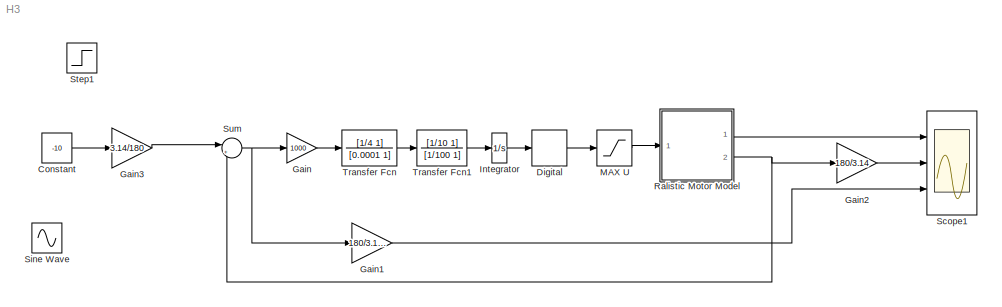
MODEL H3
KIND model
BLOCK [Constant] Constant
  OutDataType = fixdt(1, 16)
  OutScaling = 2^0
  Value = -10
BLOCK [ZeroOrderHold] Digital
  SampleTime = 1/19531.25
BLOCK [Gain] Gain
  Gain = 1000
  OutDataType = fixdt(1, 16)
  OutDataTypeMode = Inherit via internal rule
  OutDataTypeStr = Inherit: Inherit via internal rule
  OutScaling = 2^0
  ParamDataTypeStr = Inherit: Inherit via internal rule
  ParameterDataType = fixdt(1, 16)
  ParameterDataTypeMode = Inherit via internal rule
  ParameterScaling = 2^0
  SaturateOnIntegerOverflow = off
BLOCK [Gain] Gain1
  Gain = 180/3.14*60*60
  OutDataType = fixdt(1, 16)
  OutDataTypeMode = Inherit via internal rule
  OutDataTypeStr = Inherit: Inherit via internal rule
  OutScaling = 2^0
  ParamDataTypeStr = Inherit: Inherit via internal rule
  ParameterDataType = fixdt(1, 16)
  ParameterDataTypeMode = Inherit via internal rule
  ParameterScaling = 2^0
  SaturateOnIntegerOverflow = off
BLOCK [Gain] Gain2
  Gain = 180/3.14
  OutDataType = fixdt(1, 16)
  OutDataTypeMode = Inherit via internal rule
  OutDataTypeStr = Inherit: Inherit via internal rule
  OutScaling = 2^0
  ParamDataTypeStr = Inherit: Inherit via internal rule
  ParameterDataType = fixdt(1, 16)
  ParameterDataTypeMode = Inherit via internal rule
  ParameterScaling = 2^0
  SaturateOnIntegerOverflow = off
BLOCK [Gain] Gain3
  Gain = 3.14/180
  OutDataType = fixdt(1, 16)
  OutDataTypeMode = Inherit via internal rule
  OutDataTypeStr = Inherit: Inherit via internal rule
  OutScaling = 2^0
  ParamDataTypeStr = Inherit: Inherit via internal rule
  ParameterDataType = fixdt(1, 16)
  ParameterDataTypeMode = Inherit via internal rule
  ParameterScaling = 2^0
  SaturateOnIntegerOverflow = off
BLOCK [Integrator] Integrator
  Ports = [1, 1]
BLOCK [Saturate] MAX U
  LowerLimit = -27
  UpperLimit = 27
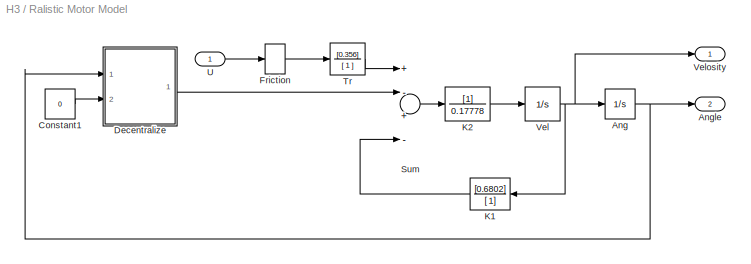
BLOCK [SubSystem] Ralistic Motor Model
  FunctionWithSeparateData = off
  MaskHideContents = off
  MinAlgLoopOccurrences = off
  Opaque = off
  Ports = [1, 2]
  PropExecContextOutsideSubsystem = off
  RTWSystemCode = Auto
  RequestExecContextInheritance = off
  TreatAsAtomicUnit = on
BLOCK [Integrator] Ralistic Motor Model/Ang
  Ports = [1, 1]
BLOCK [Outport] Ralistic Motor Model/Angle
  IconDisplay = Port number
  OutDataType = fixdt(1, 16)
  OutScaling = 2^0
  Port = 2
BLOCK [Constant] Ralistic Motor Model/Constant1
  OutDataType = fixdt(1, 16)
  OutScaling = 2^0
  Value = 0
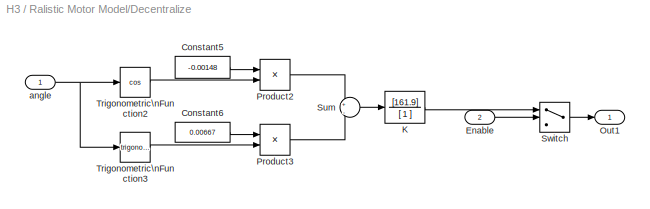
BLOCK [SubSystem] Ralistic Motor Model/Decentralize
  FunctionWithSeparateData = off
  MaskHideContents = off
  MinAlgLoopOccurrences = off
  Opaque = off
  Ports = [2, 1]
  PropExecContextOutsideSubsystem = off
  RTWSystemCode = Auto
  RequestExecContextInheritance = off
  TreatAsAtomicUnit = on
BLOCK [Constant] Ralistic Motor Model/Decentralize/Constant5
  Value = -0.00148
BLOCK [Constant] Ralistic Motor Model/Decentralize/Constant6
  Value = 0.00667
BLOCK [Inport] Ralistic Motor Model/Decentralize/Enable
  IconDisplay = Port number
  OutDataType = fixdt(1, 16)
  OutScaling = 2^0
  Port = 2
BLOCK [TransferFcn] Ralistic Motor Model/Decentralize/K
  Denominator = [ 1 ]
  Numerator = [161.9]
BLOCK [Outport] Ralistic Motor Model/Decentralize/Out1
  IconDisplay = Port number
  OutDataType = fixdt(1, 16)
  OutScaling = 2^0
BLOCK [Product] Ralistic Motor Model/Decentralize/Product2
  InputSameDT = off
  OutDataTypeMode = Inherit via internal rule
  OutDataTypeStr = Inherit: Inherit via internal rule
  Ports = [2, 1]
  SaturateOnIntegerOverflow = off
BLOCK [Product] Ralistic Motor Model/Decentralize/Product3
  InputSameDT = off
  OutDataTypeMode = Inherit via internal rule
  OutDataTypeStr = Inherit: Inherit via internal rule
  Ports = [2, 1]
  SaturateOnIntegerOverflow = off
BLOCK [Sum] Ralistic Motor Model/Decentralize/Sum
  IconShape = round
  InputSameDT = off
  Inputs = +|-
  OutDataType = fixdt(1, 16)
  OutDataTypeMode = Inherit via internal rule
  OutDataTypeStr = Inherit: Inherit via internal rule
  OutScaling = 2^0
  Ports = [2, 1]
  SaturateOnIntegerOverflow = off
BLOCK [Switch] Ralistic Motor Model/Decentralize/Switch
  Criteria = u2 > Threshold
  InputSameDT = off
  OutDataType = fixdt(1, 16)
  OutScaling = 2^0
  SaturateOnIntegerOverflow = off
BLOCK [Trigonometry] Ralistic Motor Model/Decentralize/Trigonometric\nFunction2
  Operator = cos
  Ports = [1, 1]
BLOCK [Trigonometry] Ralistic Motor Model/Decentralize/Trigonometric\nFunction3
  Ports = [1, 1]
BLOCK [Inport] Ralistic Motor Model/Decentralize/angle
  IconDisplay = Port number
  OutDataType = fixdt(1, 16)
  OutScaling = 2^0
BLOCK [DeadZone] Ralistic Motor Model/Friction
  LowerValue = -1.4
  UpperValue = 1.4
BLOCK [TransferFcn] Ralistic Motor Model/K1
  Denominator = [ 1]
  Numerator = [0.6802]
BLOCK [TransferFcn] Ralistic Motor Model/K2
  Denominator = 0.17778
BLOCK [Sum] Ralistic Motor Model/Sum
  InputSameDT = off
  Inputs = +-+-
  OutDataTypeMode = Inherit via internal rule
  OutDataTypeStr = Inherit: Inherit via internal rule
  Ports = [4, 1]
  SaturateOnIntegerOverflow = off
BLOCK [TransferFcn] Ralistic Motor Model/Tr
  Denominator = [ 1 ]
  Numerator = [0.356]
BLOCK [Inport] Ralistic Motor Model/U
  IconDisplay = Port number
  OutDataType = fixdt(1, 16)
  OutScaling = 2^0
BLOCK [Integrator] Ralistic Motor Model/Vel
  Ports = [1, 1]
BLOCK [Outport] Ralistic Motor Model/Velosity
  IconDisplay = Port number
  OutDataType = fixdt(1, 16)
  OutScaling = 2^0
BLOCK [Scope] Scope1
  DataFormat = StructureWithTime
  Floating = off
  MaxDataPoints = 500000
  NumInputPorts = 3
  Ports = [3]
  SampleTime = 0
  SaveName = ScopeData1
  YMax = 1.5~1.25~250000
  YMin = -1.5~-1.25~-250000
  ZoomMode = yonly
BLOCK [Sin] Sine Wave
  Amplitude = 60
  Bias = 0
  Frequency = 3
  Offset = 0
  Phase = 0
  Ports = [0, 1]
  SampleTime = 0
  Samples = 10
BLOCK [Step] Step1
  After = -20
  SampleTime = 0
  Time = 5
BLOCK [Sum] Sum
  IconShape = round
  InputSameDT = off
  Inputs = |+-
  OutDataType = fixdt(1, 16)
  OutDataTypeMode = Inherit via internal rule
  OutDataTypeStr = Inherit: Inherit via internal rule
  OutScaling = 2^0
  Ports = [2, 1]
  SaturateOnIntegerOverflow = off
BLOCK [TransferFcn] Transfer Fcn
  Denominator = [0.0001 1]
  Numerator = [1/4 1]
BLOCK [TransferFcn] Transfer Fcn1
  Denominator = [1/100 1]
  Numerator = [1/10 1]
LINE Constant:1 -> Gain3:1
LINE Digital:1 -> MAX U:1
LINE Gain1:1 -> Scope1:3
LINE Gain2:1 -> Scope1:2
LINE Gain3:1 -> Sum:1
LINE Gain:1 -> Transfer Fcn:1
LINE Integrator:1 -> Digital:1
LINE MAX U:1 -> Ralistic Motor Model:1
NET Ralistic Motor Model/Ang:1 -> Ralistic Motor Model/Angle:1, Ralistic Motor Model/Decentralize:1
LINE Ralistic Motor Model/Constant1:1 -> Ralistic Motor Model/Decentralize:2
LINE Ralistic Motor Model/Decentralize/Constant5:1 -> Ralistic Motor Model/Decentralize/Product2:1
LINE Ralistic Motor Model/Decentralize/Constant6:1 -> Ralistic Motor Model/Decentralize/Product3:1
LINE Ralistic Motor Model/Decentralize/Enable:1 -> Ralistic Motor Model/Decentralize/Switch:2
LINE Ralistic Motor Model/Decentralize/K:1 -> Ralistic Motor Model/Decentralize/Switch:1
LINE Ralistic Motor Model/Decentralize/Product2:1 -> Ralistic Motor Model/Decentralize/Sum:1
LINE Ralistic Motor Model/Decentralize/Product3:1 -> Ralistic Motor Model/Decentralize/Sum:2
LINE Ralistic Motor Model/Decentralize/Sum:1 -> Ralistic Motor Model/Decentralize/K:1
LINE Ralistic Motor Model/Decentralize/Switch:1 -> Ralistic Motor Model/Decentralize/Out1:1
LINE Ralistic Motor Model/Decentralize/Trigonometric\nFunction2:1 -> Ralistic Motor Model/Decentralize/Product2:2
LINE Ralistic Motor Model/Decentralize/Trigonometric\nFunction3:1 -> Ralistic Motor Model/Decentralize/Product3:2
NET Ralistic Motor Model/Decentralize/angle:1 -> Ralistic Motor Model/Decentralize/Trigonometric\nFunction2:1, Ralistic Motor Model/Decentralize/Trigonometric\nFunction3:1
LINE Ralistic Motor Model/Decentralize:1 -> Ralistic Motor Model/Sum:2
LINE Ralistic Motor Model/Friction:1 -> Ralistic Motor Model/Tr:1
LINE Ralistic Motor Model/K1:1 -> Ralistic Motor Model/Sum:4
LINE Ralistic Motor Model/K2:1 -> Ralistic Motor Model/Vel:1
LINE Ralistic Motor Model/Sum:1 -> Ralistic Motor Model/K2:1
LINE Ralistic Motor Model/Tr:1 -> Ralistic Motor Model/Sum:1
LINE Ralistic Motor Model/U:1 -> Ralistic Motor Model/Friction:1
NET Ralistic Motor Model/Vel:1 -> Ralistic Motor Model/Ang:1, Ralistic Motor Model/K1:1, Ralistic Motor Model/Velosity:1
LINE Ralistic Motor Model:1 -> Scope1:1
NET Ralistic Motor Model:2 -> Gain2:1, Sum:2
NET Sum:1 -> Gain1:1, Gain:1
LINE Transfer Fcn1:1 -> Integrator:1
LINE Transfer Fcn:1 -> Transfer Fcn1:1
note: NET lines group one-source signal fan-out (src -> all destinations, sorted); 1:1 wires keep LINE
